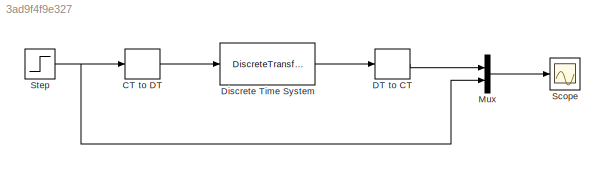
MODEL slx_3ad9f4f9e327
KIND model
BLOCK [ZeroOrderHold] CT to DT
BLOCK [ZeroOrderHold] DT to CT
BLOCK [DiscreteTransferFcn] Discrete Time System
  Denominator = [1 -0.5 0.125]
  InputPortMap = u0
  Numerator = [1 1 0]
  Ports = [1, 1]
BLOCK [Mux] Mux
  DisplayOption = bar
  Inputs = 2
  Ports = [2, 1]
BLOCK [Scope] Scope
  DataFormat = StructureWithTime
  Floating = off
  NumInputPorts = 1
  Ports = [1]
  SampleTime = 0
  ShowLegends = off
  YMax = 4
  YMin = 0
BLOCK [Step] Step
  SampleTime = 0
LINE CT to DT:1 -> Discrete Time System:1
LINE DT to CT:1 -> Mux:1
LINE Discrete Time System:1 -> DT to CT:1
LINE Mux:1 -> Scope:1
NET Step:1 -> CT to DT:1, Mux:2
note: NET lines group one-source signal fan-out (src -> all destinations, sorted); 1:1 wires keep LINE
